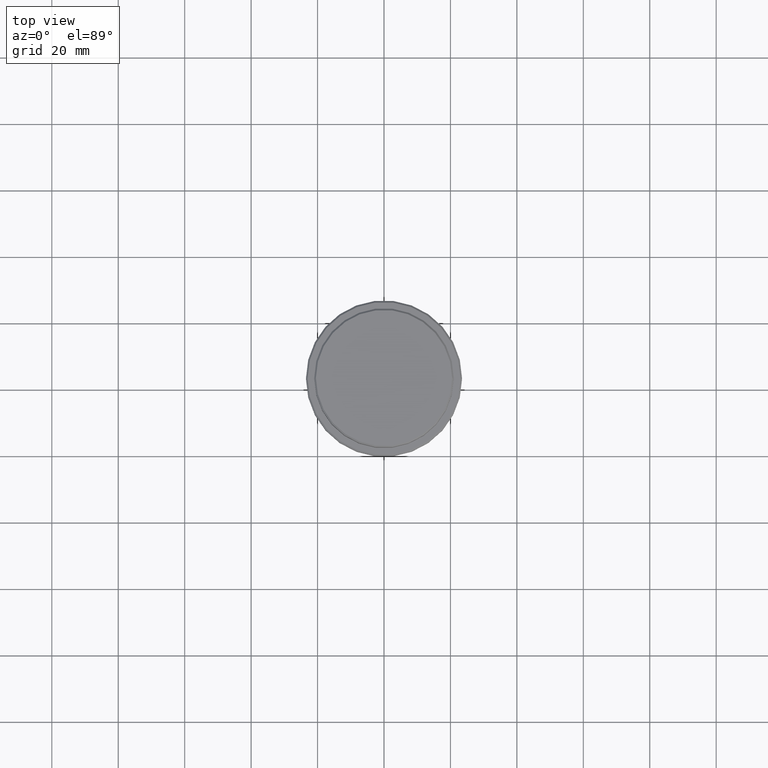
[diagram: clean part render]
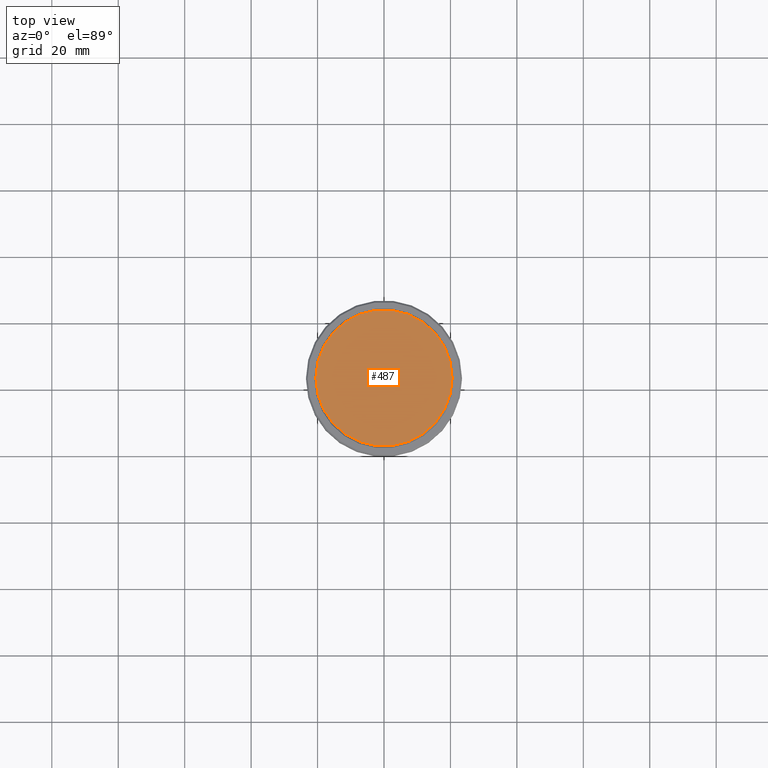
[diagram: same view with one face highlighted and labeled with its STEP entity id]
A machine part, top view. The second image highlights one B-rep face of the part: STEP entity #487.
In plain terms, the highlighted planar face has unit normal (0, -0, 1).
Its self-contained STEP definition (entity closure, byte-faithful):
#47 = DIRECTION ( 'NONE',  ( 1.000000000000000000, 0.000000000000000000, 0.000000000000000000 ) ) ;
#92 = FACE_OUTER_BOUND ( 'NONE', #795, .T. ) ;
#100 = DIRECTION ( 'NONE',  ( 0.000000000000000000, -0.000000000000000000, 1.000000000000000000 ) ) ;
#129 = AXIS2_PLACEMENT_3D ( 'NONE', #313, #571, #437 ) ;
#313 = CARTESIAN_POINT ( 'NONE',  ( 0.000000000000000000, 0.000000000000000000, 0.000000000000000000 ) ) ;
#316 = DIRECTION ( 'NONE',  ( 1.000000000000000000, 0.000000000000000000, 0.000000000000000000 ) ) ;
#425 = AXIS2_PLACEMENT_3D ( 'NONE', #1029, #1138, #47 ) ;
#437 = DIRECTION ( 'NONE',  ( 1.000000000000000000, 0.000000000000000000, 0.000000000000000000 ) ) ;
#459 = ORIENTED_EDGE ( 'NONE', *, *, #1312, .T. ) ;
#487 = ADVANCED_FACE ( 'NONE', ( #92 ), #863, .T. ) ;
#519 = CIRCLE ( 'NONE', #425, 20.49999999999998934 ) ;
#571 = DIRECTION ( 'NONE',  ( -0.000000000000000000, -0.000000000000000000, 1.000000000000000000 ) ) ;
#652 = CARTESIAN_POINT ( 'NONE',  ( 0.000000000000000000, 0.000000000000000000, 0.000000000000000000 ) ) ;
#754 = CARTESIAN_POINT ( 'NONE',  ( -20.49999999999998934, 0.000000000000000000, 0.000000000000000000 ) ) ;
#786 = AXIS2_PLACEMENT_3D ( 'NONE', #652, #100, #316 ) ;
#795 = EDGE_LOOP ( 'NONE', ( #940, #459 ) ) ;
#863 = PLANE ( 'NONE',  #786 ) ;
#940 = ORIENTED_EDGE ( 'NONE', *, *, #1070, .T. ) ;
#1012 = VERTEX_POINT ( 'NONE', #1345 ) ;
#1029 = CARTESIAN_POINT ( 'NONE',  ( 0.000000000000000000, 0.000000000000000000, 0.000000000000000000 ) ) ;
#1070 = EDGE_CURVE ( 'NONE', #1373, #1012, #519, .T. ) ;
#1138 = DIRECTION ( 'NONE',  ( -0.000000000000000000, -0.000000000000000000, 1.000000000000000000 ) ) ;
#1220 = CIRCLE ( 'NONE', #129, 20.49999999999998934 ) ;
#1312 = EDGE_CURVE ( 'NONE', #1012, #1373, #1220, .T. ) ;
#1345 = CARTESIAN_POINT ( 'NONE',  ( 20.49999999999998934, 2.541142108230757085E-15, 0.000000000000000000 ) ) ;
#1373 = VERTEX_POINT ( 'NONE', #754 ) ;